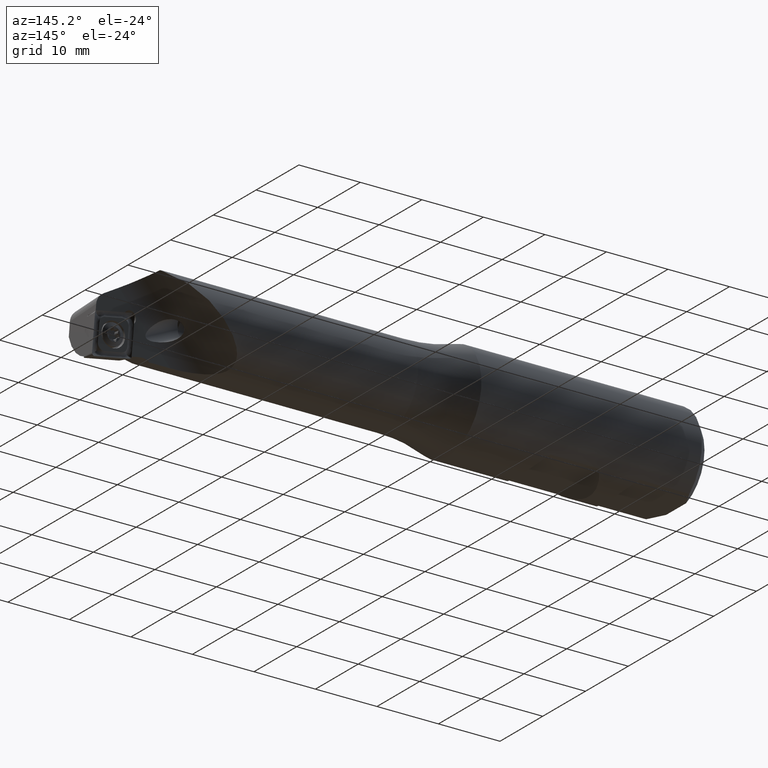
[diagram: clean part render]
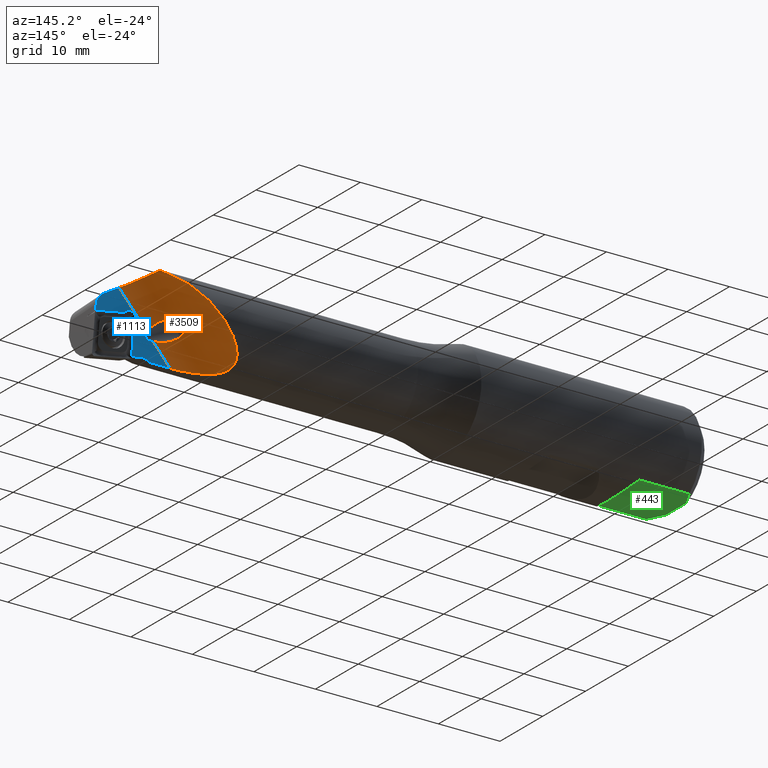
[diagram: same view with three faces highlighted in distinct colors, each labeled with its STEP entity id]
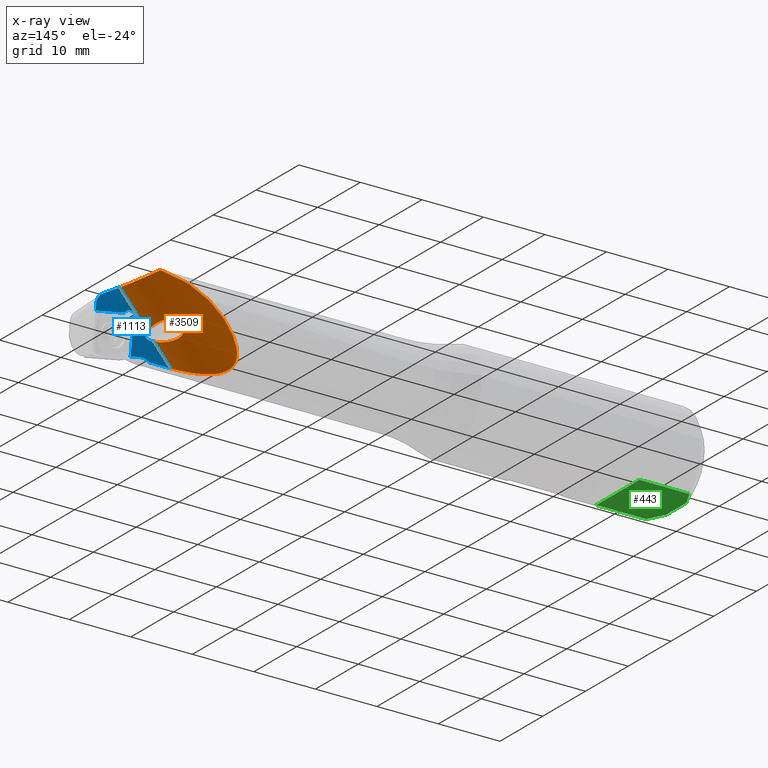
[diagram: x-ray of the same camera — body ghosted, the three highlighted faces saturated]
A machine part, auxiliary view with three faces highlighted in distinct colors.
The next image is the same camera in x-ray (body ghosted, the three faces saturated) — at least one of them is partly hidden behind the body in this view.
Their STEP definitions:

[orange] entity #3509 — the highlighted cylindrical surface (partial cylindrical patch) has radius 8 mm, axis along (-0.7045, -0.0865, -0.7045).
#89 = ORIENTED_EDGE ( 'NONE', *, *, #1408, .F. ) ;
#142 = CARTESIAN_POINT ( 'NONE',  ( 81.65859209365322600, 1.236571762244588900, -2.397407842372694100 ) ) ;
#147 = CARTESIAN_POINT ( 'NONE',  ( 76.46034890174081500, 6.149994192479361700, -2.224178600920144100 ) ) ;
#155 = CARTESIAN_POINT ( 'NONE',  ( 83.31017587755974300, 0.5356344038150859800, -3.195891464751897400 ) ) ;
#190 = CARTESIAN_POINT ( 'NONE',  ( 86.08803876861370000, 0.5331756874534576700, -1.983553224444357900 ) ) ;
#201 = CARTESIAN_POINT ( 'NONE',  ( 82.49377858464630700, 2.006328885930039000, -0.3246664313092215100 ) ) ;
#216 = CARTESIAN_POINT ( 'NONE',  ( 81.10959519269270900, -0.005562088175553078800, -6.525286672151020500 ) ) ;
#262 = CARTESIAN_POINT ( 'NONE',  ( 86.36863961714340100, 0.4716694274547481000, -2.392458973700722700 ) ) ;
#312 = CARTESIAN_POINT ( 'NONE',  ( 86.49422329902087400, 3.740163208753565400, 5.360818527861223300 ) ) ;
#315 = VECTOR ( 'NONE', #918, 1000.000000000000000 ) ;
#330 = ORIENTED_EDGE ( 'NONE', *, *, #2997, .T. ) ;
#375 = CARTESIAN_POINT ( 'NONE',  ( 89.40997225853810400, 1.213173825509131800, 3.646609721920704800 ) ) ;
#434 = B_SPLINE_CURVE_WITH_KNOTS ( 'NONE', 3,
 ( #683, #1235, #1546, #2884, #2325, #966, #2871, #1207, #3114, #1739, #1245, #1528, #147, #2063, #2338, #2599, #976, #1578, #1324, #2940, #2375, #449, #506, #2653, #2909, #2385, #3173, #1857, #2090, #1035, #755, #987, #1308, #3496, #2897, #1602, #2612, #3234, #3217, #3510, #3203, #2626, #3467, #216, #2141, #1553 ),
 .UNSPECIFIED., .F., .F.,
 ( 4, 2, 2, 2, 2, 2, 2, 2, 2, 2, 2, 2, 2, 2, 2, 2, 2, 2, 2, 2, 2, 2, 4 ),
 ( 0.0000000000000000000, 0.003347499554930291700, 0.005021249332395436900, 0.006694999109860583400, 0.01004249866479090500, 0.01171624844225605300, 0.01338999821972119800, 0.01506374799718634500, 0.01590062288591890400, 0.01631906033028519500, 0.01673749777465148600, 0.01715593521901777300, 0.01757437266338406100, 0.01799281010775034800, 0.01841124755211663600, 0.01882968499648292000, 0.01924812244084920700, 0.02008499732958177900, 0.02092187221831435700, 0.02175874710704693200, 0.02343249688451208200, 0.02510624666197723200, 0.02677999643944238600 ),
 .UNSPECIFIED. ) ;
#449 = CARTESIAN_POINT ( 'NONE',  ( 74.46071014795448700, 4.115041673605922800, -5.065714872911455800 ) ) ;
#472 = CARTESIAN_POINT ( 'NONE',  ( 81.28570404721405400, 1.841948998789781700, -1.559080889018621000 ) ) ;
#500 = VERTEX_POINT ( 'NONE', #2913 ) ;
#506 = CARTESIAN_POINT ( 'NONE',  ( 74.44396656498213400, 4.005101328589423900, -5.153149368889238200 ) ) ;
#548 = CARTESIAN_POINT ( 'NONE',  ( 82.83900725858420300, 1.890020625637313800, -0.2466147226118995400 ) ) ;
#559 = CARTESIAN_POINT ( 'NONE',  ( 83.07001106361569500, 1.799858626963684900, -0.2254518308211351200 ) ) ;
#570 = VERTEX_POINT ( 'NONE', #2616 ) ;
#580 = CARTESIAN_POINT ( 'NONE',  ( 86.31815581045633200, 3.816099325435246700, 5.292989015829166800 ) ) ;
#620 = CARTESIAN_POINT ( 'NONE',  ( 82.23619642221048300, -0.03573079569139822600, -6.524902168633604800 ) ) ;
#683 = CARTESIAN_POINT ( 'NONE',  ( 86.23061127999569900, 3.858172834153674300, 5.262140950392588200 ) ) ;
#742 = CARTESIAN_POINT ( 'NONE',  ( 86.23061127999569900, 3.858172834153674300, 5.262140950392588200 ) ) ;
#749 = LINE ( 'NONE', #844, #1000 ) ;
#750 = CARTESIAN_POINT ( 'NONE',  ( 84.49013145994501900, 1.148765672404820500, -0.5794837045580935000 ) ) ;
#755 = CARTESIAN_POINT ( 'NONE',  ( 74.82766434348297900, 2.606149237644900500, -5.983085736255825200 ) ) ;
#772 = CARTESIAN_POINT ( 'NONE',  ( 91.31566004698329700, 1.079087158710360800, 2.554561456139146100 ) ) ;
#782 = ORIENTED_EDGE ( 'NONE', *, *, #1297, .T. ) ;
#805 = CARTESIAN_POINT ( 'NONE',  ( 81.48139119057461200, 2.086656605216200800, -1.013436362093054200 ) ) ;
#818 = CARTESIAN_POINT ( 'NONE',  ( 82.37787446668132000, 2.039152692647625100, -0.3643569751816243500 ) ) ;
#844 = CARTESIAN_POINT ( 'NONE',  ( 96.28203804702486900, 1.688881700723333000, 7.520939456180686400 ) ) ;
#918 = DIRECTION ( 'NONE',  ( -0.7044566603032254000, -0.08649640171046139900, -0.7044566603032216300 ) ) ;
#949 = EDGE_LOOP ( 'NONE', ( #1711, #782, #89, #1793, #330, #1063 ) ) ;
#962 = CARTESIAN_POINT ( 'NONE',  ( 84.25102340792763300, 0.3732295881416847800, -3.415435357989275600 ) ) ;
#966 = CARTESIAN_POINT ( 'NONE',  ( 81.72435886483985700, 5.943105887355356400, 2.717766312071919100 ) ) ;
#969 = B_SPLINE_CURVE_WITH_KNOTS ( 'NONE', 3,
 ( #312, #1908, #580, #1676 ),
 .UNSPECIFIED., .F., .F.,
 ( 4, 4 ),
 ( 0.0002962571871974239800, 0.0006012965531029942600 ),
 .UNSPECIFIED. ) ;
#972 = CARTESIAN_POINT ( 'NONE',  ( 91.31566004698329700, 1.079087158710360800, 2.554561456139146100 ) ) ;
#975 = CARTESIAN_POINT ( 'NONE',  ( 82.62691069728644800, 0.7295954700096657400, -2.969978184515053700 ) ) ;
#976 = CARTESIAN_POINT ( 'NONE',  ( 74.84265935526859400, 4.983410941142663500, -4.220092962777843400 ) ) ;
#987 = CARTESIAN_POINT ( 'NONE',  ( 74.98932085734387000, 2.389859570945962000, -6.072717678883399200 ) ) ;
#1000 = VECTOR ( 'NONE', #2749, 1000.000000000000000 ) ;
#1035 = CARTESIAN_POINT ( 'NONE',  ( 74.75552049374699900, 2.717677429860034400, -5.933480203728634300 ) ) ;
#1063 = ORIENTED_EDGE ( 'NONE', *, *, #2436, .T. ) ;
#1101 = CARTESIAN_POINT ( 'NONE',  ( 81.35374766746353700, 2.012068600858911300, -1.229117811135926400 ) ) ;
#1158 = EDGE_CURVE ( 'NONE', #2391, #1440, #969, .T. ) ;
#1168 = DIRECTION ( 'NONE',  ( -0.7044566603032254000, -0.08649640171046139900, -0.7044566603032216300 ) ) ;
#1173 = CARTESIAN_POINT ( 'NONE',  ( 86.49422329902087400, 3.740163208753565400, 5.360818527861223300 ) ) ;
#1207 = CARTESIAN_POINT ( 'NONE',  ( 80.03744620957932900, 6.434889271027337500, 1.312441113708917100 ) ) ;
#1212 = CARTESIAN_POINT ( 'NONE',  ( 86.49422329902087400, 3.740163208753565400, 5.360818527861223300 ) ) ;
#1234 = CARTESIAN_POINT ( 'NONE',  ( 83.54315898378023100, 0.4875445222711023400, -3.256728510025065600 ) ) ;
#1235 = CARTESIAN_POINT ( 'NONE',  ( 85.25865749983371700, 4.325289461866348400, 4.919653605334288700 ) ) ;
#1241 = CARTESIAN_POINT ( 'NONE',  ( 82.85197032699480200, 0.6565428710010045000, -3.052581804437260300 ) ) ;
#1245 = CARTESIAN_POINT ( 'NONE',  ( 77.60874603235870900, 6.456180310566815600, -1.029434732691144600 ) ) ;
#1290 = CARTESIAN_POINT ( 'NONE',  ( 85.25607452339298200, 0.8121897373876031400, -1.111828471773110600 ) ) ;
#1297 = EDGE_CURVE ( 'NONE', #570, #1959, #1766, .T. ) ;
#1308 = CARTESIAN_POINT ( 'NONE',  ( 75.07921436551718800, 2.284867520326124200, -6.112780343141059400 ) ) ;
#1324 = CARTESIAN_POINT ( 'NONE',  ( 74.63122522758861500, 4.626425176592463600, -4.603291921419359900 ) ) ;
#1368 = CARTESIAN_POINT ( 'NONE',  ( 81.28352759468714300, 1.777640006401687500, -1.667355225235808100 ) ) ;
#1395 = CARTESIAN_POINT ( 'NONE',  ( 83.85810678135331400, 1.448495682263924800, -0.3172675110096125900 ) ) ;
#1408 = EDGE_CURVE ( 'NONE', #1440, #1959, #434, .T. ) ;
#1440 = VERTEX_POINT ( 'NONE', #742 ) ;
#1528 = CARTESIAN_POINT ( 'NONE',  ( 76.83630588780749800, 6.277715265940339700, -1.825456411750528800 ) ) ;
#1546 = CARTESIAN_POINT ( 'NONE',  ( 84.34692601890260700, 4.797780989750240400, 4.474824379446401300 ) ) ;
#1553 = CARTESIAN_POINT ( 'NONE',  ( 82.23619642221048300, -0.03573079569139822600, -6.524902168633604800 ) ) ;
#1578 = CARTESIAN_POINT ( 'NONE',  ( 74.68002190042261600, 4.719026884751423600, -4.508147770059248500 ) ) ;
#1602 = CARTESIAN_POINT ( 'NONE',  ( 76.03284611181113900, 1.481527842799918100, -6.356830922926667100 ) ) ;
#1665 = CARTESIAN_POINT ( 'NONE',  ( 85.07074574533703500, 0.8887069391977215900, -0.9607222093187248700 ) ) ;
#1676 = CARTESIAN_POINT ( 'NONE',  ( 86.23061127999569900, 3.858172834153674300, 5.262140950392588200 ) ) ;
#1711 = ORIENTED_EDGE ( 'NONE', *, *, #1783, .F. ) ;
#1739 = CARTESIAN_POINT ( 'NONE',  ( 78.00651606336556700, 6.506424541765675900, -0.6313227019914711100 ) ) ;
#1766 = LINE ( 'NONE', #2803, #315 ) ;
#1773 = CARTESIAN_POINT ( 'NONE',  ( 81.74019628427242900, 1.175260113095842400, -2.468862802517484100 ) ) ;
#1783 = EDGE_CURVE ( 'NONE', #570, #500, #3115, .T. ) ;
#1793 = ORIENTED_EDGE ( 'NONE', *, *, #1158, .F. ) ;
#1857 = CARTESIAN_POINT ( 'NONE',  ( 74.57821308855164900, 3.067447976232391400, -5.760624856454017000 ) ) ;
#1900 = CARTESIAN_POINT ( 'NONE',  ( 81.31711673983667800, 1.641563186831006800, -1.876022093651383200 ) ) ;
#1908 = CARTESIAN_POINT ( 'NONE',  ( 86.40605868727293200, 3.776762827660709000, 5.325800590099212300 ) ) ;
#1910 = CARTESIAN_POINT ( 'NONE',  ( 86.23753725210195900, 0.4975777028233841500, -2.181453003747219300 ) ) ;
#1921 = CARTESIAN_POINT ( 'NONE',  ( 82.72387924586590200, 1.931840714297464300, -0.2660598668931362100 ) ) ;
#1959 = VERTEX_POINT ( 'NONE', #620 ) ;
#2058 = CARTESIAN_POINT ( 'NONE',  ( 81.51344721847063100, 1.366015843502102800, -2.240932875534507900 ) ) ;
#2063 = CARTESIAN_POINT ( 'NONE',  ( 75.74170042579481800, 5.795526035033889300, -3.030062209520679500 ) ) ;
#2090 = CARTESIAN_POINT ( 'NONE',  ( 74.63081790112879300, 2.947933436709585700, -5.822512034641050600 ) ) ;
#2141 = CARTESIAN_POINT ( 'NONE',  ( 81.67064380493312100, -0.03573079569129727900, -6.524902168633588000 ) ) ;
#2164 = VERTEX_POINT ( 'NONE', #772 ) ;
#2195 = CARTESIAN_POINT ( 'NONE',  ( 81.44997889672627900, 1.434460631896041800, -2.155457265328984700 ) ) ;
#2325 = CARTESIAN_POINT ( 'NONE',  ( 82.58795335344841200, 5.605870402943085500, 3.358716769952128100 ) ) ;
#2335 = CARTESIAN_POINT ( 'NONE',  ( 82.20569748663245900, 0.9013840580287978400, -2.778311394080276400 ) ) ;
#2338 = CARTESIAN_POINT ( 'NONE',  ( 75.40592117706322000, 5.573526455028678900, -3.428080811893543100 ) ) ;
#2375 = CARTESIAN_POINT ( 'NONE',  ( 74.51217623063583100, 4.327516703230375400, -4.885451292604592800 ) ) ;
#2385 = CARTESIAN_POINT ( 'NONE',  ( 74.46991696561278200, 3.422598059609077000, -5.557082363059018700 ) ) ;
#2391 = VERTEX_POINT ( 'NONE', #1173 ) ;
#2436 = EDGE_CURVE ( 'NONE', #2164, #500, #749, .T. ) ;
#2449 = CARTESIAN_POINT ( 'NONE',  ( 81.82974815863029500, 2.136954668344277900, -0.6535630264163051500 ) ) ;
#2599 = CARTESIAN_POINT ( 'NONE',  ( 74.97308660399096400, 5.142450855959150900, -4.023791960761554900 ) ) ;
#2603 = CYLINDRICAL_SURFACE ( 'NONE', #3289, 7.999999999999995600 ) ;
#2612 = CARTESIAN_POINT ( 'NONE',  ( 76.27504901142019400, 1.334577627042732300, -6.388465429668203300 ) ) ;
#2616 = CARTESIAN_POINT ( 'NONE',  ( 85.22929435729321300, 0.3317754200072319800, -3.531804233550903700 ) ) ;
#2617 =( BOUNDED_CURVE ( )  B_SPLINE_CURVE ( 3, ( #1212, #3108, #375, #972 ),
 .UNSPECIFIED., .F., .T. ) 
 B_SPLINE_CURVE_WITH_KNOTS ( ( 4, 4 ),
 ( 0.3447567354024803600, 1.122363677382135700 ),
 .UNSPECIFIED. ) 
 CURVE ( )  GEOMETRIC_REPRESENTATION_ITEM ( )  RATIONAL_B_SPLINE_CURVE ( ( 1.000000000000000000, 0.9502422027527979200, 0.9502422027527979200, 1.000000000000000000 ) ) 
 REPRESENTATION_ITEM ( '' )  );
#2626 = CARTESIAN_POINT ( 'NONE',  ( 79.44511042653418500, 0.2097157157928928600, -6.522909333174473200 ) ) ;
#2653 = CARTESIAN_POINT ( 'NONE',  ( 74.43177676948199900, 3.777147863742521800, -5.322493690534314800 ) ) ;
#2717 = CARTESIAN_POINT ( 'NONE',  ( 82.04352085975222100, 2.114913005904081300, -0.5126003027061629700 ) ) ;
#2749 = DIRECTION ( 'NONE',  ( -0.7044566603032254000, -0.08649640171046139900, -0.7044566603032216300 ) ) ;
#2803 = CARTESIAN_POINT ( 'NONE',  ( 96.28203804702486900, 1.688881700723333000, 7.520939456180686400 ) ) ;
#2852 = CARTESIAN_POINT ( 'NONE',  ( 84.73408340041736200, 0.3365557026037079800, -3.492871956061603700 ) ) ;
#2871 = CARTESIAN_POINT ( 'NONE',  ( 81.29584264792087800, 6.088941533274301300, 2.374675800230689600 ) ) ;
#2884 = CARTESIAN_POINT ( 'NONE',  ( 83.02242154298181700, 5.415129143645363500, 3.656334779634766700 ) ) ;
#2894 = CARTESIAN_POINT ( 'NONE',  ( 85.22929435729321300, 0.3317754200072319800, -3.531804233550903700 ) ) ;
#2897 = CARTESIAN_POINT ( 'NONE',  ( 75.57644927276415100, 1.808826083859220900, -6.271552625149422700 ) ) ;
#2909 = CARTESIAN_POINT ( 'NONE',  ( 74.43666107217158900, 3.658493508904053100, -5.404698614425080400 ) ) ;
#2913 = CARTESIAN_POINT ( 'NONE',  ( 86.36863961714340100, 0.4716694274547481000, -2.392458973700722700 ) ) ;
#2935 = CARTESIAN_POINT ( 'NONE',  ( 85.77263985942896300, 0.6248172404980755200, -1.610754601482580900 ) ) ;
#2940 = CARTESIAN_POINT ( 'NONE',  ( 74.54721524422329500, 4.430677214505614400, -4.791993932516412300 ) ) ;
#2996 = CARTESIAN_POINT ( 'NONE',  ( 84.68796167671125400, 1.056956082763652800, -0.6949228174510369000 ) ) ;
#2997 = EDGE_CURVE ( 'NONE', #2391, #2164, #2617, .T. ) ;
#3009 = CARTESIAN_POINT ( 'NONE',  ( 83.18651879448660200, 1.751197531925468500, -0.2238968011627513200 ) ) ;
#3022 = CARTESIAN_POINT ( 'NONE',  ( 83.52626718588364000, 1.601517053871616400, -0.2518163235815261700 ) ) ;
#3088 = CARTESIAN_POINT ( 'NONE',  ( 96.28203804702485500, 9.629250913853910600, 6.545984708939486500 ) ) ;
#3108 = CARTESIAN_POINT ( 'NONE',  ( 87.71867126390598900, 2.146646731094681700, 4.631010352827251700 ) ) ;
#3114 = CARTESIAN_POINT ( 'NONE',  ( 79.22240721958002000, 6.549345649230859000, 0.5547172738095874600 ) ) ;
#3115 = B_SPLINE_CURVE_WITH_KNOTS ( 'NONE', 3,
 ( #2894, #2852, #962, #1234, #155, #1241, #975, #2335, #3147, #1773, #142, #2058, #2195, #3287, #1900, #1368, #472, #1101, #805, #2449, #2717, #818, #201, #1921, #548, #559, #3009, #3274, #3022, #1395, #3297, #750, #2996, #1665, #1290, #3198, #2935, #190, #1910, #262 ),
 .UNSPECIFIED., .F., .F.,
 ( 4, 2, 2, 2, 2, 2, 2, 2, 2, 2, 2, 2, 2, 2, 2, 2, 2, 2, 2, 4 ),
 ( 5.421010862427522200E-020, 0.001468075721790363900, 0.002202113582685525600, 0.002936151443580687500, 0.003670189304475849400, 0.004037208234923430100, 0.004404227165371009600, 0.004771246095818590700, 0.005138265026266171000, 0.005872302887161333400, 0.006606340748056494000, 0.006973359678504075100, 0.007340378608951655400, 0.007707397539399235700, 0.008074416469846816900, 0.008808454330741977500, 0.009542492191637138100, 0.01027653005253229900, 0.01101056791342746100, 0.01174460577432262200 ),
 .UNSPECIFIED. ) ;
#3147 = CARTESIAN_POINT ( 'NONE',  ( 82.00629334032143400, 1.000964448493712600, -2.668595633634275500 ) ) ;
#3173 = CARTESIAN_POINT ( 'NONE',  ( 74.49811057998874700, 3.304275500776306700, -5.628125730530329400 ) ) ;
#3198 = CARTESIAN_POINT ( 'NONE',  ( 85.60622899982969600, 0.6805985416936231000, -1.436420084517488100 ) ) ;
#3203 = CARTESIAN_POINT ( 'NONE',  ( 78.35265037132684500, 0.4678383809541479800, -6.509489542166218000 ) ) ;
#3217 = CARTESIAN_POINT ( 'NONE',  ( 77.02544859745022200, 0.9535667872557110900, -6.455834888856212000 ) ) ;
#3234 = CARTESIAN_POINT ( 'NONE',  ( 76.77050386640982500, 1.071119443386411300, -6.437879396716619200 ) ) ;
#3274 = CARTESIAN_POINT ( 'NONE',  ( 83.41427209768042400, 1.652164578740103600, -0.2371529836810758200 ) ) ;
#3287 = CARTESIAN_POINT ( 'NONE',  ( 81.35241599006121800, 1.571505412080662600, -1.973931039553885400 ) ) ;
#3289 = AXIS2_PLACEMENT_3D ( 'NONE', #3088, #1168, #3361 ) ;
#3297 = CARTESIAN_POINT ( 'NONE',  ( 84.07593596849326900, 1.344150529265395700, -0.3905796967762986700 ) ) ;
#3315 = FACE_OUTER_BOUND ( 'NONE', #949, .T. ) ;
#3361 = DIRECTION ( 'NONE',  ( -0.7071067811865454600, 0.0000000000000000000, 0.7071067811865497900 ) ) ;
#3467 = CARTESIAN_POINT ( 'NONE',  ( 79.99684483681183200, 0.1172681066741676600, -6.524235225812574900 ) ) ;
#3496 = CARTESIAN_POINT ( 'NONE',  ( 75.36419492137304100, 1.987351722230931400, -6.218550519846046700 ) ) ;
#3509 = ADVANCED_FACE ( 'NONE', ( #3315 ), #2603, .F. ) ;
#3510 = CARTESIAN_POINT ( 'NONE',  ( 77.80731962146992900, 0.6350110690538176600, -6.497558069144149700 ) ) ;

[blue] entity #1113 — the highlighted planar face has unit normal (0, -0.9925, 0.1219).
#34 = ORIENTED_EDGE ( 'NONE', *, *, #136, .T. ) ;
#50 = VERTEX_POINT ( 'NONE', #767 ) ;
#70 = AXIS2_PLACEMENT_3D ( 'NONE', #3349, #300, #1925 ) ;
#136 = EDGE_CURVE ( 'NONE', #2519, #3227, #561, .T. ) ;
#152 = CARTESIAN_POINT ( 'NONE',  ( 85.87633208982453000, -0.01787117355164541400, -6.379447218855571800 ) ) ;
#173 = CARTESIAN_POINT ( 'NONE',  ( 85.75879595935801100, -0.02620234640370687500, -6.447299176714103000 ) ) ;
#186 = CARTESIAN_POINT ( 'NONE',  ( 86.24594239742012300, 0.0007851253898971721800, -6.227503857211810400 ) ) ;
#194 = CARTESIAN_POINT ( 'NONE',  ( 85.22929435729321300, 0.3317754200072319800, -3.531804233550903700 ) ) ;
#213 = EDGE_CURVE ( 'NONE', #2164, #2709, #1830, .T. ) ;
#237 = DIRECTION ( 'NONE',  ( -0.9848077530122072400, 0.02116238939576807800, 0.1723538304828446400 ) ) ;
#266 = EDGE_CURVE ( 'NONE', #3227, #50, #2468, .T. ) ;
#300 = DIRECTION ( 'NONE',  ( 2.196661150820306400E-015, -0.9925461516413216500, 0.1218693434051504900 ) ) ;
#315 = VECTOR ( 'NONE', #918, 1000.000000000000000 ) ;
#324 = ORIENTED_EDGE ( 'NONE', *, *, #468, .T. ) ;
#423 = CARTESIAN_POINT ( 'NONE',  ( 94.77544308781945400, 0.7445133235893977000, -0.1703237628220238800 ) ) ;
#468 = EDGE_CURVE ( 'NONE', #50, #2031, #698, .T. ) ;
#493 = CARTESIAN_POINT ( 'NONE',  ( 88.67455691218056300, -0.02531362387780912100, -6.440061112584888100 ) ) ;
#500 = VERTEX_POINT ( 'NONE', #2913 ) ;
#511 = CARTESIAN_POINT ( 'NONE',  ( 93.78289693617811900, 0.9054891681680588000, 1.140719281962373700 ) ) ;
#516 = EDGE_CURVE ( 'NONE', #3126, #1039, #518, .T. ) ;
#518 = LINE ( 'NONE', #423, #1873 ) ;
#561 = LINE ( 'NONE', #1624, #2950 ) ;
#570 = VERTEX_POINT ( 'NONE', #2616 ) ;
#586 = EDGE_CURVE ( 'NONE', #2709, #3126, #1996, .T. ) ;
#595 = ORIENTED_EDGE ( 'NONE', *, *, #266, .T. ) ;
#620 = CARTESIAN_POINT ( 'NONE',  ( 82.23619642221048300, -0.03573079569139822600, -6.524902168633604800 ) ) ;
#693 = DIRECTION ( 'NONE',  ( 1.000000000000000000, 0.0000000000000000000, 0.0000000000000000000 ) ) ;
#698 = B_SPLINE_CURVE_WITH_KNOTS ( 'NONE', 3,
 ( #1740, #954, #2387, #758, #744, #186, #2364, #152, #173, #3471 ),
 .UNSPECIFIED., .F., .F.,
 ( 4, 2, 2, 2, 4 ),
 ( 0.0000000000000000000, 0.0003993295053818357400, 0.0007986590107636714900, 0.001197988516145507300, 0.001597318021527343000 ),
 .UNSPECIFIED. ) ;
#700 = ORIENTED_EDGE ( 'NONE', *, *, #2770, .T. ) ;
#709 = LINE ( 'NONE', #1291, #2205 ) ;
#715 = FACE_OUTER_BOUND ( 'NONE', #1075, .T. ) ;
#741 = ORIENTED_EDGE ( 'NONE', *, *, #3293, .F. ) ;
#744 = CARTESIAN_POINT ( 'NONE',  ( 86.50683393481723700, 0.008095139833002083400, -6.167968567193675300 ) ) ;
#749 = LINE ( 'NONE', #844, #1000 ) ;
#758 = CARTESIAN_POINT ( 'NONE',  ( 86.64154405867641600, 0.01015976178246743300, -6.151153570794439100 ) ) ;
#767 = CARTESIAN_POINT ( 'NONE',  ( 87.17383487963631700, 0.006935171819000664600, -6.177415748545195500 ) ) ;
#772 = CARTESIAN_POINT ( 'NONE',  ( 91.31566004698329700, 1.079087158710360800, 2.554561456139146100 ) ) ;
#844 = CARTESIAN_POINT ( 'NONE',  ( 96.28203804702486900, 1.688881700723333000, 7.520939456180686400 ) ) ;
#858 = PLANE ( 'NONE',  #2982 ) ;
#914 = CARTESIAN_POINT ( 'NONE',  ( 88.67455691218056300, 0.5271215341128568900, -1.940837806916139800 ) ) ;
#918 = DIRECTION ( 'NONE',  ( -0.7044566603032254000, -0.08649640171046139900, -0.7044566603032216300 ) ) ;
#953 = CARTESIAN_POINT ( 'NONE',  ( 85.65092830108879700, -0.03573079569122290800, -6.524902168633004400 ) ) ;
#954 = CARTESIAN_POINT ( 'NONE',  ( 87.04086269248512100, 0.009792591650108917900, -6.154143931550367900 ) ) ;
#955 = ORIENTED_EDGE ( 'NONE', *, *, #213, .T. ) ;
#1000 = VECTOR ( 'NONE', #2749, 1000.000000000000000 ) ;
#1039 = VERTEX_POINT ( 'NONE', #1847 ) ;
#1045 = CARTESIAN_POINT ( 'NONE',  ( 103.5771929604975600, 0.3905987994448423800, -3.052726253347148400 ) ) ;
#1075 = EDGE_LOOP ( 'NONE', ( #955, #1535, #3107, #700, #2637, #34, #595, #324, #1744, #1082, #741, #1982 ) ) ;
#1082 = ORIENTED_EDGE ( 'NONE', *, *, #1297, .F. ) ;
#1113 = ADVANCED_FACE ( 'NONE', ( #715 ), #858, .F. ) ;
#1179 = VECTOR ( 'NONE', #237, 1000.000000000000200 ) ;
#1230 = CARTESIAN_POINT ( 'NONE',  ( 96.03710465674622300, -0.1835263327429277600, -7.728600222890802800 ) ) ;
#1291 = CARTESIAN_POINT ( 'NONE',  ( -3.175455607189906700, -0.03573079569149054800, -6.524902168633585300 ) ) ;
#1297 = EDGE_CURVE ( 'NONE', #570, #1959, #1766, .T. ) ;
#1378 = VERTEX_POINT ( 'NONE', #3429 ) ;
#1390 = CARTESIAN_POINT ( 'NONE',  ( 104.0892551225445300, 0.7445133235894176900, -0.1703237628220294900 ) ) ;
#1535 = ORIENTED_EDGE ( 'NONE', *, *, #586, .T. ) ;
#1593 =( BOUNDED_CURVE ( )  B_SPLINE_CURVE ( 3, ( #3216, #2131, #3543, #194 ),
 .UNSPECIFIED., .F., .T. ) 
 B_SPLINE_CURVE_WITH_KNOTS ( ( 4, 4 ),
 ( 5.842472706260799100, 6.921398834793638600 ),
 .UNSPECIFIED. ) 
 CURVE ( )  GEOMETRIC_REPRESENTATION_ITEM ( )  RATIONAL_B_SPLINE_CURVE ( ( 1.000000000000000000, 0.9053230771318014900, 0.9053230771318014900, 1.000000000000000000 ) ) 
 REPRESENTATION_ITEM ( '' )  );
#1616 = CARTESIAN_POINT ( 'NONE',  ( 94.77544308781945400, 0.7846082256454858200, 0.1562230095184591900 ) ) ;
#1624 = CARTESIAN_POINT ( 'NONE',  ( 88.67455691218056300, 0.7445133235893833800, -0.1703237628220306000 ) ) ;
#1685 = DIRECTION ( 'NONE',  ( 0.0000000000000000000, -0.1218693434051504700, -0.9925461516413215400 ) ) ;
#1740 = CARTESIAN_POINT ( 'NONE',  ( 87.17383487963631700, 0.006935171819000664600, -6.177415748545195500 ) ) ;
#1744 = ORIENTED_EDGE ( 'NONE', *, *, #2561, .F. ) ;
#1766 = LINE ( 'NONE', #2803, #315 ) ;
#1830 = LINE ( 'NONE', #2176, #3208 ) ;
#1847 = CARTESIAN_POINT ( 'NONE',  ( 94.77544308781945400, 0.5797383118014841600, -1.512308541496379300 ) ) ;
#1873 = VECTOR ( 'NONE', #2643, 1000.000000000000100 ) ;
#1925 = DIRECTION ( 'NONE',  ( 0.0000000000000000000, -0.1218693434051505200, -0.9925461516413216500 ) ) ;
#1959 = VERTEX_POINT ( 'NONE', #620 ) ;
#1982 = ORIENTED_EDGE ( 'NONE', *, *, #2436, .F. ) ;
#1996 =( BOUNDED_CURVE ( )  B_SPLINE_CURVE ( 3, ( #2671, #3500, #1616, #3522 ),
 .UNSPECIFIED., .F., .F. ) 
 B_SPLINE_CURVE_WITH_KNOTS ( ( 4, 4 ),
 ( 5.763884693139968500, 6.802485921219227900 ),
 .UNSPECIFIED. ) 
 CURVE ( )  GEOMETRIC_REPRESENTATION_ITEM ( )  RATIONAL_B_SPLINE_CURVE ( ( 1.000000000000000000, 0.9121109855992487500, 0.9121109855992487500, 1.000000000000000000 ) ) 
 REPRESENTATION_ITEM ( '' )  );
#2031 = VERTEX_POINT ( 'NONE', #953 ) ;
#2131 = CARTESIAN_POINT ( 'NONE',  ( 86.87583204108966600, 0.3714387338259428400, -3.208772465329886400 ) ) ;
#2164 = VERTEX_POINT ( 'NONE', #772 ) ;
#2176 = CARTESIAN_POINT ( 'NONE',  ( 102.0846271821516400, 0.3213686505814514800, -3.616560568950813800 ) ) ;
#2185 = DIRECTION ( 'NONE',  ( 0.8660254037844397100, -0.06093467170257311400, -0.4962730758206591600 ) ) ;
#2197 = DIRECTION ( 'NONE',  ( 3.408114345676480700E-016, -0.1218693434051504700, -0.9925461516413215400 ) ) ;
#2205 = VECTOR ( 'NONE', #693, 1000.000000000000000 ) ;
#2364 = CARTESIAN_POINT ( 'NONE',  ( 86.11984500236138700, -0.004409190050736471800, -6.269808161616499100 ) ) ;
#2387 = CARTESIAN_POINT ( 'NONE',  ( 86.90780878111321800, 0.01098226555050864500, -6.144454815169205600 ) ) ;
#2388 = EDGE_CURVE ( 'NONE', #1378, #2519, #3488, .T. ) ;
#2436 = EDGE_CURVE ( 'NONE', #2164, #500, #749, .T. ) ;
#2468 = LINE ( 'NONE', #1230, #2850 ) ;
#2519 = VERTEX_POINT ( 'NONE', #914 ) ;
#2561 = EDGE_CURVE ( 'NONE', #1959, #2031, #709, .T. ) ;
#2616 = CARTESIAN_POINT ( 'NONE',  ( 85.22929435729321300, 0.3317754200072319800, -3.531804233550903700 ) ) ;
#2637 = ORIENTED_EDGE ( 'NONE', *, *, #2388, .T. ) ;
#2643 = DIRECTION ( 'NONE',  ( -3.373159326746465800E-016, -0.1218693434051504700, -0.9925461516413215400 ) ) ;
#2671 = CARTESIAN_POINT ( 'NONE',  ( 93.78289693617811900, 0.9054891681680588000, 1.140719281962373700 ) ) ;
#2709 = VERTEX_POINT ( 'NONE', #511 ) ;
#2749 = DIRECTION ( 'NONE',  ( -0.7044566603032254000, -0.08649640171046139900, -0.7044566603032216300 ) ) ;
#2770 = EDGE_CURVE ( 'NONE', #1039, #1378, #3059, .T. ) ;
#2803 = CARTESIAN_POINT ( 'NONE',  ( 96.28203804702486900, 1.688881700723333000, 7.520939456180686400 ) ) ;
#2850 = VECTOR ( 'NONE', #3119, 1000.000000000000100 ) ;
#2913 = CARTESIAN_POINT ( 'NONE',  ( 86.36863961714340100, 0.4716694274547481000, -2.392458973700722700 ) ) ;
#2950 = VECTOR ( 'NONE', #2197, 1000.000000000000100 ) ;
#2982 = AXIS2_PLACEMENT_3D ( 'NONE', #1390, #3004, #1685 ) ;
#3004 = DIRECTION ( 'NONE',  ( 2.196661150820306700E-015, -0.9925461516413216500, 0.1218693434051504900 ) ) ;
#3059 = LINE ( 'NONE', #1045, #1179 ) ;
#3107 = ORIENTED_EDGE ( 'NONE', *, *, #516, .T. ) ;
#3119 = DIRECTION ( 'NONE',  ( -0.9848077530122073500, 0.02116238939576970500, 0.1723538304828441900 ) ) ;
#3126 = VERTEX_POINT ( 'NONE', #3485 ) ;
#3208 = VECTOR ( 'NONE', #2185, 1000.000000000000000 ) ;
#3216 = CARTESIAN_POINT ( 'NONE',  ( 86.36863961714340100, 0.4716694274547481000, -2.392458973700722700 ) ) ;
#3227 = VERTEX_POINT ( 'NONE', #493 ) ;
#3293 = EDGE_CURVE ( 'NONE', #500, #570, #1593, .T. ) ;
#3349 = CARTESIAN_POINT ( 'NONE',  ( 89.25805041359457400, 0.6260937981217062900, -1.134773402067139600 ) ) ;
#3429 = CARTESIAN_POINT ( 'NONE',  ( 90.15915291031379300, 0.6789370945095041200, -0.7043992898888031800 ) ) ;
#3471 = CARTESIAN_POINT ( 'NONE',  ( 85.65092830108879700, -0.03573079569122290800, -6.524902168633004400 ) ) ;
#3485 = CARTESIAN_POINT ( 'NONE',  ( 94.77544308781945400, 0.6959786608470566200, -0.5656068699605509800 ) ) ;
#3488 = CIRCLE ( 'NONE', #70, 1.000000000000000700 ) ;
#3500 = CARTESIAN_POINT ( 'NONE',  ( 94.41271451373434300, 0.8611743857688454200, 0.7798043422228644300 ) ) ;
#3522 = CARTESIAN_POINT ( 'NONE',  ( 94.77544308781945400, 0.6959786608470566200, -0.5656068699605509800 ) ) ;
#3543 = CARTESIAN_POINT ( 'NONE',  ( 86.45633345226919200, 0.3199307837982315300, -3.628271054150353800 ) ) ;

[green] entity #443 — the highlighted planar face has unit normal (0, 0, 1).
#59 = CARTESIAN_POINT ( 'NONE',  ( 0.8443957044948018400, 4.183512899218848200, -6.200000000000001100 ) ) ;
#73 = ORIENTED_EDGE ( 'NONE', *, *, #2440, .F. ) ;
#98 = CARTESIAN_POINT ( 'NONE',  ( 1.375000000000004700, 5.055689863905843900, -6.199999999999999300 ) ) ;
#132 = B_SPLINE_CURVE_WITH_KNOTS ( 'NONE', 3,
 ( #3341, #355, #59, #1966, #2813, #2287 ),
 .UNSPECIFIED., .F., .F.,
 ( 4, 2, 4 ),
 ( 0.01498964033621598800, 0.01651543360208723000, 0.01804122686795847600 ),
 .UNSPECIFIED. ) ;
#138 = CARTESIAN_POINT ( 'NONE',  ( 0.8475333585746123200, -4.189047391212119100, -6.199999999999998400 ) ) ;
#165 = EDGE_CURVE ( 'NONE', #2148, #1660, #3294, .T. ) ;
#191 = EDGE_CURVE ( 'NONE', #2943, #2148, #3301, .T. ) ;
#238 = DIRECTION ( 'NONE',  ( -1.000000000000000000, -0.0000000000000000000, -0.0000000000000000000 ) ) ;
#275 = CARTESIAN_POINT ( 'NONE',  ( 9.499999999999998200, -8.025000000000000400, -6.199999999999999300 ) ) ;
#299 = EDGE_CURVE ( 'NONE', #1074, #2193, #2093, .T. ) ;
#354 = LINE ( 'NONE', #1827, #504 ) ;
#355 = CARTESIAN_POINT ( 'NONE',  ( 1.102759812682801100, 4.624903649330743600, -6.199999999999999300 ) ) ;
#373 = VECTOR ( 'NONE', #238, 1000.000000000000000 ) ;
#443 = ADVANCED_FACE ( 'NONE', ( #1380 ), #3094, .F. ) ;
#451 = CARTESIAN_POINT ( 'NONE',  ( 9.499999999999998200, 5.055689863905817200, -6.199999999999999300 ) ) ;
#504 = VECTOR ( 'NONE', #2953, 1000.000000000000000 ) ;
#847 = VECTOR ( 'NONE', #2166, 1000.000000000000000 ) ;
#855 = DIRECTION ( 'NONE',  ( 1.000000000000000000, 0.0000000000000000000, 0.0000000000000000000 ) ) ;
#1074 = VERTEX_POINT ( 'NONE', #1631 ) ;
#1205 = VERTEX_POINT ( 'NONE', #2727 ) ;
#1282 = EDGE_CURVE ( 'NONE', #1660, #1205, #132, .T. ) ;
#1380 = FACE_OUTER_BOUND ( 'NONE', #1393, .T. ) ;
#1393 = EDGE_LOOP ( 'NONE', ( #3197, #73, #2668, #1882, #3457, #1699 ) ) ;
#1469 = EDGE_CURVE ( 'NONE', #1205, #1074, #354, .T. ) ;
#1494 = DIRECTION ( 'NONE',  ( 1.000000000000000000, 0.0000000000000000000, 0.0000000000000000000 ) ) ;
#1529 = LINE ( 'NONE', #1976, #2413 ) ;
#1631 = CARTESIAN_POINT ( 'NONE',  ( 0.0000000000000000000, -2.334657362441024700, -6.199999999999999300 ) ) ;
#1635 = CARTESIAN_POINT ( 'NONE',  ( -3.175455607189903200, 5.055689863905816300, -6.199999999999999300 ) ) ;
#1660 = VERTEX_POINT ( 'NONE', #98 ) ;
#1699 = ORIENTED_EDGE ( 'NONE', *, *, #165, .F. ) ;
#1786 = CARTESIAN_POINT ( 'NONE',  ( 0.0000000000000000000, -2.334657362441024700, -6.199999999999999300 ) ) ;
#1797 = CARTESIAN_POINT ( 'NONE',  ( 1.103883033249895000, -4.626681006086919900, -6.200000000000002000 ) ) ;
#1811 = CARTESIAN_POINT ( 'NONE',  ( 0.3815471660728556000, -3.286497594889461900, -6.199999999999999300 ) ) ;
#1827 = CARTESIAN_POINT ( 'NONE',  ( 0.0000000000000000000, 2.250000000000000000, -6.199999999999999300 ) ) ;
#1882 = ORIENTED_EDGE ( 'NONE', *, *, #1469, .F. ) ;
#1962 = AXIS2_PLACEMENT_3D ( 'NONE', #2837, #3116, #1494 ) ;
#1966 = CARTESIAN_POINT ( 'NONE',  ( 0.3783296866794274600, 3.279715641321741400, -6.200000000000000200 ) ) ;
#1976 = CARTESIAN_POINT ( 'NONE',  ( -3.175455607189903200, -5.055689863905816300, -6.199999999999999300 ) ) ;
#2093 = B_SPLINE_CURVE_WITH_KNOTS ( 'NONE', 3,
 ( #1786, #3450, #1811, #138, #1797, #2632 ),
 .UNSPECIFIED., .F., .F.,
 ( 4, 2, 4 ),
 ( 0.02280706587486891800, 0.02434375454163164400, 0.02588044320839437400 ),
 .UNSPECIFIED. ) ;
#2148 = VERTEX_POINT ( 'NONE', #451 ) ;
#2166 = DIRECTION ( 'NONE',  ( -0.0000000000000000000, 1.000000000000000000, -0.0000000000000000000 ) ) ;
#2193 = VERTEX_POINT ( 'NONE', #2910 ) ;
#2287 = CARTESIAN_POINT ( 'NONE',  ( 0.0000000000000000000, 2.334657362441025600, -6.199999999999999300 ) ) ;
#2413 = VECTOR ( 'NONE', #855, 1000.000000000000000 ) ;
#2440 = EDGE_CURVE ( 'NONE', #2193, #2943, #1529, .T. ) ;
#2632 = CARTESIAN_POINT ( 'NONE',  ( 1.374999999999997800, -5.055689863905816300, -6.199999999999999300 ) ) ;
#2668 = ORIENTED_EDGE ( 'NONE', *, *, #299, .F. ) ;
#2727 = CARTESIAN_POINT ( 'NONE',  ( 0.0000000000000000000, 2.334657362441025600, -6.199999999999999300 ) ) ;
#2804 = CARTESIAN_POINT ( 'NONE',  ( 9.499999999999998200, -5.055689863905816300, -6.199999999999999300 ) ) ;
#2813 = CARTESIAN_POINT ( 'NONE',  ( 0.1697391835517367000, 2.816322085119872500, -6.200000000000000200 ) ) ;
#2837 = CARTESIAN_POINT ( 'NONE',  ( 0.0000000000000000000, -8.025000000000000400, -6.199999999999999300 ) ) ;
#2910 = CARTESIAN_POINT ( 'NONE',  ( 1.374999999999997800, -5.055689863905816300, -6.199999999999999300 ) ) ;
#2943 = VERTEX_POINT ( 'NONE', #2804 ) ;
#2953 = DIRECTION ( 'NONE',  ( 0.0000000000000000000, -1.000000000000000000, 0.0000000000000000000 ) ) ;
#3094 = PLANE ( 'NONE',  #1962 ) ;
#3116 = DIRECTION ( 'NONE',  ( -0.0000000000000000000, 0.0000000000000000000, 1.000000000000000000 ) ) ;
#3197 = ORIENTED_EDGE ( 'NONE', *, *, #191, .F. ) ;
#3294 = LINE ( 'NONE', #1635, #373 ) ;
#3301 = LINE ( 'NONE', #275, #847 ) ;
#3341 = CARTESIAN_POINT ( 'NONE',  ( 1.375000000000004700, 5.055689863905843900, -6.199999999999999300 ) ) ;
#3450 = CARTESIAN_POINT ( 'NONE',  ( 0.1714315222812182500, -2.821124393271452500, -6.200000000000000200 ) ) ;
#3457 = ORIENTED_EDGE ( 'NONE', *, *, #1282, .F. ) ;